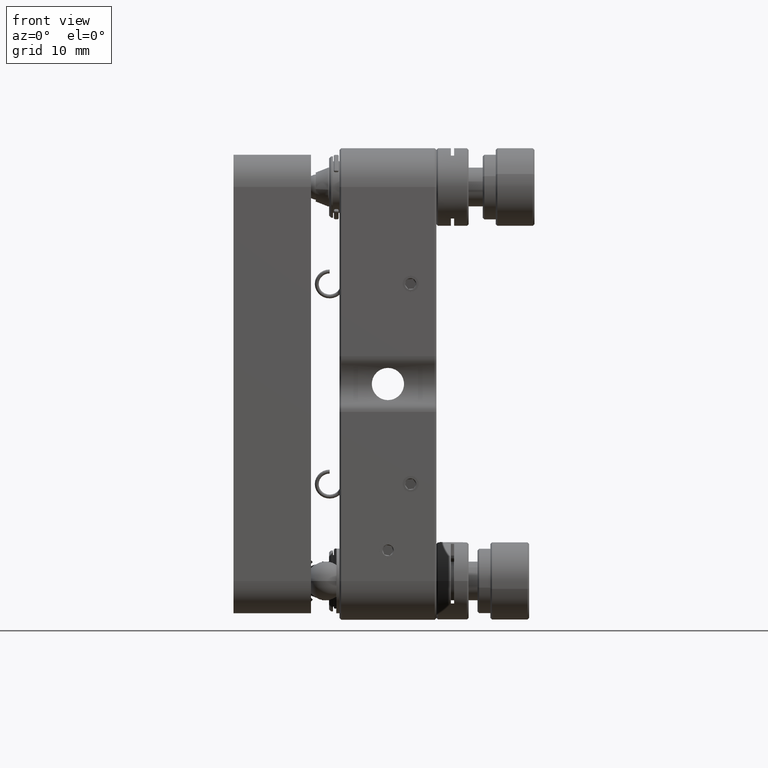
[diagram: clean part render]
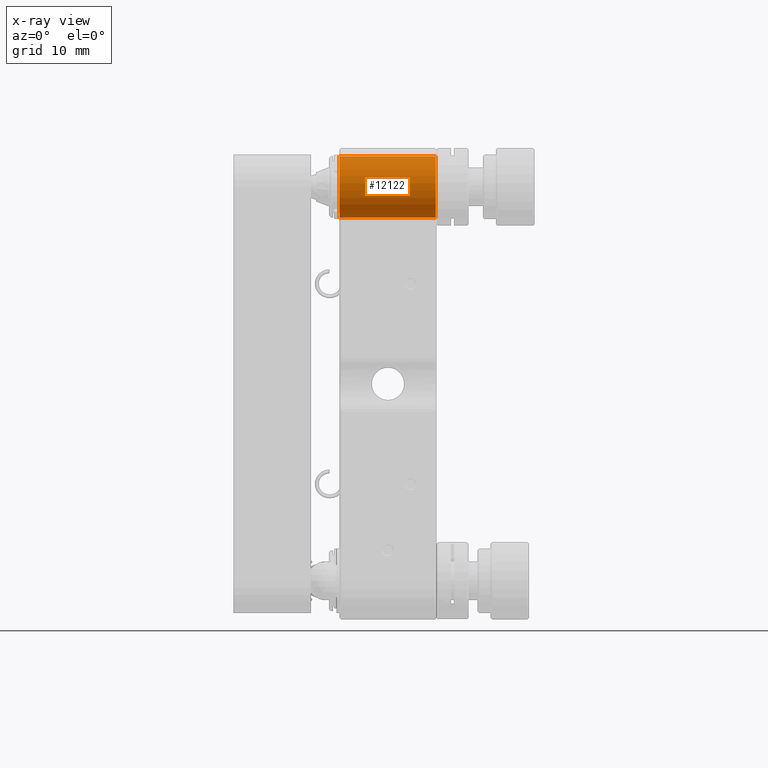
[diagram: x-ray — body ghosted, one internal face saturated and labeled with its STEP entity id]
A machine part, front view, then the same camera in x-ray: the body is ghosted and one INTERNAL B-rep face — a face not visible from any outside direction — is saturated and labeled: STEP entity #12122.
In plain terms, the highlighted cylindrical surface (edge-blend (fillet) strip) has radius 4.75 mm, axis along (-1, 0, -0).
Its self-contained STEP definition (entity closure, byte-faithful):
#664 = EDGE_LOOP ( 'NONE', ( #15034, #7558, #926, #15110 ) ) ;
#835 = DIRECTION ( 'NONE',  ( 1.000000000000000000, 1.665334536937727908E-16, 0.0000000000000000000 ) ) ;
#926 = ORIENTED_EDGE ( 'NONE', *, *, #16620, .T. ) ;
#1386 = DIRECTION ( 'NONE',  ( -6.280466659066648541E-31, -4.683861624749757595E-31, -1.000000000000000000 ) ) ;
#1588 = EDGE_CURVE ( 'NONE', #18855, #11241, #6305, .T. ) ;
#1959 = VECTOR ( 'NONE', #1386, 1000.000000000000000 ) ;
#2031 = LINE ( 'NONE', #14044, #10861 ) ;
#2069 = CARTESIAN_POINT ( 'NONE',  ( -4.750000000000000000, -7.910339050454344875E-16, -5.099999999999969447 ) ) ;
#2715 = DIRECTION ( 'NONE',  ( 6.280466659066648541E-31, 4.683861624749757595E-31, 1.000000000000000000 ) ) ;
#3632 = FACE_OUTER_BOUND ( 'NONE', #664, .T. ) ;
#5009 = DIRECTION ( 'NONE',  ( -6.280466659066648541E-31, -4.683861624749757595E-31, -1.000000000000000000 ) ) ;
#5184 = EDGE_CURVE ( 'NONE', #18855, #18396, #2031, .T. ) ;
#5931 = LINE ( 'NONE', #10552, #1959 ) ;
#6305 = CIRCLE ( 'NONE', #17920, 4.750000000000018652 ) ;
#6406 = CYLINDRICAL_SURFACE ( 'NONE', #10927, 4.750000000000018652 ) ;
#6662 = DIRECTION ( 'NONE',  ( -6.280466659066648541E-31, -4.683861624749757595E-31, -1.000000000000000000 ) ) ;
#6700 = DIRECTION ( 'NONE',  ( -6.280466659066648541E-31, -4.683861624749757595E-31, -1.000000000000000000 ) ) ;
#7485 = CIRCLE ( 'NONE', #15006, 4.750000000000018652 ) ;
#7558 = ORIENTED_EDGE ( 'NONE', *, *, #1588, .T. ) ;
#7796 = CARTESIAN_POINT ( 'NONE',  ( 4.750000000000013323, 1.372741134640393112E-15, -19.99999999999997158 ) ) ;
#10310 = CARTESIAN_POINT ( 'NONE',  ( 4.750000000000000000, 1.372741134640399620E-15, -5.099999999999969447 ) ) ;
#10383 = VERTEX_POINT ( 'NONE', #12969 ) ;
#10552 = CARTESIAN_POINT ( 'NONE',  ( -4.750000000000018652, -7.910339050454238378E-16, 16.97056274847708579 ) ) ;
#10567 = EDGE_CURVE ( 'NONE', #10383, #18396, #7485, .T. ) ;
#10861 = VECTOR ( 'NONE', #5009, 1000.000000000000000 ) ;
#10927 = AXIS2_PLACEMENT_3D ( 'NONE', #18502, #6700, #12595 ) ;
#11241 = VERTEX_POINT ( 'NONE', #2069 ) ;
#12122 = ADVANCED_FACE ( 'NONE', ( #3632 ), #6406, .T. ) ;
#12595 = DIRECTION ( 'NONE',  ( -1.000000000000000000, -1.665334536937727908E-16, 0.0000000000000000000 ) ) ;
#12969 = CARTESIAN_POINT ( 'NONE',  ( -4.750000000000005329, -1.119937476090626502E-14, -19.99999999999997158 ) ) ;
#14044 = CARTESIAN_POINT ( 'NONE',  ( 4.750000000000018652, 1.372741134640418947E-15, 16.97056274847708579 ) ) ;
#14740 = DIRECTION ( 'NONE',  ( -1.000000000000000000, -1.665334536937726676E-16, 0.0000000000000000000 ) ) ;
#15006 = AXIS2_PLACEMENT_3D ( 'NONE', #16229, #2715, #14740 ) ;
#15034 = ORIENTED_EDGE ( 'NONE', *, *, #5184, .F. ) ;
#15110 = ORIENTED_EDGE ( 'NONE', *, *, #10567, .T. ) ;
#16229 = CARTESIAN_POINT ( 'NONE',  ( 1.387778780781445676E-14, -1.040834085586084257E-14, -19.99999999999997158 ) ) ;
#16620 = EDGE_CURVE ( 'NONE', #11241, #10383, #5931, .T. ) ;
#17172 = CARTESIAN_POINT ( 'NONE',  ( 0.0000000000000000000, 0.0000000000000000000, -5.099999999999969447 ) ) ;
#17920 = AXIS2_PLACEMENT_3D ( 'NONE', #17172, #6662, #835 ) ;
#18396 = VERTEX_POINT ( 'NONE', #7796 ) ;
#18502 = CARTESIAN_POINT ( 'NONE',  ( 0.0000000000000000000, 0.0000000000000000000, 16.97056274847708579 ) ) ;
#18855 = VERTEX_POINT ( 'NONE', #10310 ) ;